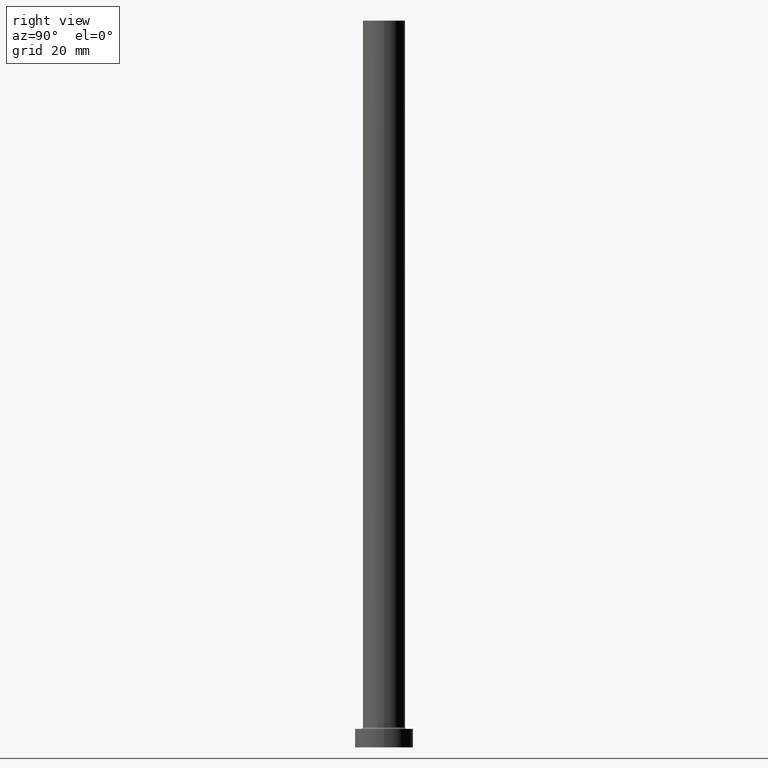
[diagram: clean part render]
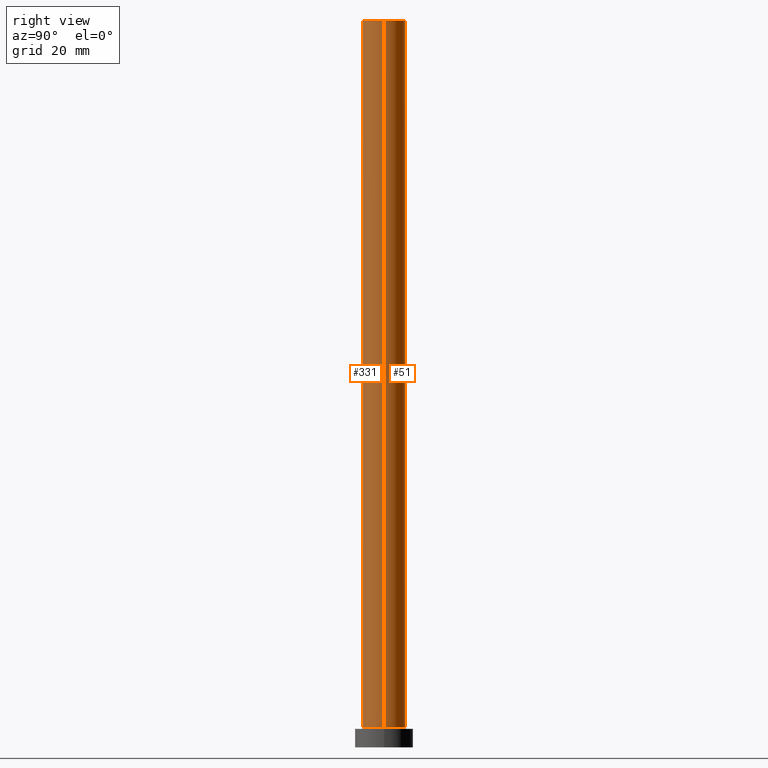
[diagram: same view with one multi-face feature highlighted, each face labeled with its STEP entity id]
A machine part, right view. The highlighted faces form ONE feature: a constant-radius fillet chain: 2 tangent blend faces with common blend radius 8 mm. The faces share edges in the B-rep.
Their STEP definitions:
[1] entity #51 (Cylinder):
#9 = CYLINDRICAL_SURFACE ( 'NONE', #86, 8.000000000000000000 ) ;
#10 = CARTESIAN_POINT ( 'NONE',  ( -8.000000000000000000, 0.000000000000000000, 275.0000000000000000 ) ) ;
#12 = VERTEX_POINT ( 'NONE', #76 ) ;
#43 = CARTESIAN_POINT ( 'NONE',  ( 0.000000000000000000, 0.000000000000000000, 275.0000000000000000 ) ) ;
#44 = CARTESIAN_POINT ( 'NONE',  ( 0.000000000000000000, 0.000000000000000000, 7.699999999999985079 ) ) ;
#50 = LINE ( 'NONE', #10, #146 ) ;
#51 = ADVANCED_FACE ( 'NONE', ( #115 ), #9, .T. ) ;
#76 = CARTESIAN_POINT ( 'NONE',  ( -8.000000000000000000, 0.000000000000000000, 7.699999999999985079 ) ) ;
#86 = AXIS2_PLACEMENT_3D ( 'NONE', #43, #107, #391 ) ;
#91 = CIRCLE ( 'NONE', #269, 8.000000000000000000 ) ;
#92 = DIRECTION ( 'NONE',  ( 1.000000000000000000, 0.000000000000000000, 0.000000000000000000 ) ) ;
#107 = DIRECTION ( 'NONE',  ( -0.000000000000000000, -0.000000000000000000, -1.000000000000000000 ) ) ;
#115 = FACE_OUTER_BOUND ( 'NONE', #410, .T. ) ;
#117 = EDGE_CURVE ( 'NONE', #443, #12, #434, .T. ) ;
#128 = CARTESIAN_POINT ( 'NONE',  ( -8.000000000000000000, 0.000000000000000000, 275.0000000000000000 ) ) ;
#134 = ORIENTED_EDGE ( 'NONE', *, *, #249, .F. ) ;
#146 = VECTOR ( 'NONE', #260, 1000.000000000000000 ) ;
#180 = DIRECTION ( 'NONE',  ( 0.000000000000000000, 0.000000000000000000, 1.000000000000000000 ) ) ;
#186 = CARTESIAN_POINT ( 'NONE',  ( 0.000000000000000000, 0.000000000000000000, 275.0000000000000000 ) ) ;
#199 = DIRECTION ( 'NONE',  ( -0.000000000000000000, -0.000000000000000000, -1.000000000000000000 ) ) ;
#224 = CARTESIAN_POINT ( 'NONE',  ( 8.000000000000000000, 9.797174393178825657E-16, 275.0000000000000000 ) ) ;
#236 = ORIENTED_EDGE ( 'NONE', *, *, #237, .F. ) ;
#237 = EDGE_CURVE ( 'NONE', #421, #12, #50, .T. ) ;
#249 = EDGE_CURVE ( 'NONE', #307, #421, #91, .T. ) ;
#253 = AXIS2_PLACEMENT_3D ( 'NONE', #44, #180, #324 ) ;
#260 = DIRECTION ( 'NONE',  ( -0.000000000000000000, -0.000000000000000000, -1.000000000000000000 ) ) ;
#269 = AXIS2_PLACEMENT_3D ( 'NONE', #186, #328, #92 ) ;
#307 = VERTEX_POINT ( 'NONE', #224 ) ;
#324 = DIRECTION ( 'NONE',  ( 1.000000000000000000, 0.000000000000000000, 0.000000000000000000 ) ) ;
#325 = VECTOR ( 'NONE', #199, 1000.000000000000000 ) ;
#328 = DIRECTION ( 'NONE',  ( 0.000000000000000000, 0.000000000000000000, 1.000000000000000000 ) ) ;
#362 = EDGE_CURVE ( 'NONE', #307, #443, #374, .T. ) ;
#374 = LINE ( 'NONE', #379, #325 ) ;
#379 = CARTESIAN_POINT ( 'NONE',  ( 8.000000000000000000, 9.797174393178825657E-16, 275.0000000000000000 ) ) ;
#381 = CARTESIAN_POINT ( 'NONE',  ( 8.000000000000000000, 9.797174393178825657E-16, 7.699999999999985079 ) ) ;
#391 = DIRECTION ( 'NONE',  ( -1.000000000000000000, 0.000000000000000000, 0.000000000000000000 ) ) ;
#410 = EDGE_LOOP ( 'NONE', ( #134, #454, #452, #236 ) ) ;
#421 = VERTEX_POINT ( 'NONE', #128 ) ;
#434 = CIRCLE ( 'NONE', #253, 8.000000000000000000 ) ;
#443 = VERTEX_POINT ( 'NONE', #381 ) ;
#452 = ORIENTED_EDGE ( 'NONE', *, *, #117, .T. ) ;
#454 = ORIENTED_EDGE ( 'NONE', *, *, #362, .T. ) ;
[2] entity #331 (Cylinder):
#10 = CARTESIAN_POINT ( 'NONE',  ( -8.000000000000000000, 0.000000000000000000, 275.0000000000000000 ) ) ;
#12 = VERTEX_POINT ( 'NONE', #76 ) ;
#18 = DIRECTION ( 'NONE',  ( 0.000000000000000000, 0.000000000000000000, 1.000000000000000000 ) ) ;
#22 = EDGE_CURVE ( 'NONE', #421, #307, #273, .T. ) ;
#50 = LINE ( 'NONE', #10, #146 ) ;
#76 = CARTESIAN_POINT ( 'NONE',  ( -8.000000000000000000, 0.000000000000000000, 7.699999999999985079 ) ) ;
#95 = ORIENTED_EDGE ( 'NONE', *, *, #237, .T. ) ;
#120 = CIRCLE ( 'NONE', #308, 8.000000000000000000 ) ;
#124 = CARTESIAN_POINT ( 'NONE',  ( 0.000000000000000000, 0.000000000000000000, 7.699999999999985079 ) ) ;
#126 = DIRECTION ( 'NONE',  ( -0.000000000000000000, -0.000000000000000000, -1.000000000000000000 ) ) ;
#128 = CARTESIAN_POINT ( 'NONE',  ( -8.000000000000000000, 0.000000000000000000, 275.0000000000000000 ) ) ;
#146 = VECTOR ( 'NONE', #260, 1000.000000000000000 ) ;
#164 = ORIENTED_EDGE ( 'NONE', *, *, #321, .T. ) ;
#185 = ORIENTED_EDGE ( 'NONE', *, *, #22, .F. ) ;
#199 = DIRECTION ( 'NONE',  ( -0.000000000000000000, -0.000000000000000000, -1.000000000000000000 ) ) ;
#214 = DIRECTION ( 'NONE',  ( 0.000000000000000000, 0.000000000000000000, 1.000000000000000000 ) ) ;
#224 = CARTESIAN_POINT ( 'NONE',  ( 8.000000000000000000, 9.797174393178825657E-16, 275.0000000000000000 ) ) ;
#237 = EDGE_CURVE ( 'NONE', #421, #12, #50, .T. ) ;
#239 = EDGE_LOOP ( 'NONE', ( #375, #185, #95, #164 ) ) ;
#260 = DIRECTION ( 'NONE',  ( -0.000000000000000000, -0.000000000000000000, -1.000000000000000000 ) ) ;
#265 = AXIS2_PLACEMENT_3D ( 'NONE', #424, #214, #460 ) ;
#273 = CIRCLE ( 'NONE', #265, 8.000000000000000000 ) ;
#304 = CYLINDRICAL_SURFACE ( 'NONE', #350, 8.000000000000000000 ) ;
#307 = VERTEX_POINT ( 'NONE', #224 ) ;
#308 = AXIS2_PLACEMENT_3D ( 'NONE', #124, #18, #405 ) ;
#321 = EDGE_CURVE ( 'NONE', #12, #443, #120, .T. ) ;
#325 = VECTOR ( 'NONE', #199, 1000.000000000000000 ) ;
#331 = ADVANCED_FACE ( 'NONE', ( #343 ), #304, .T. ) ;
#343 = FACE_OUTER_BOUND ( 'NONE', #239, .T. ) ;
#350 = AXIS2_PLACEMENT_3D ( 'NONE', #409, #126, #351 ) ;
#351 = DIRECTION ( 'NONE',  ( -1.000000000000000000, 0.000000000000000000, 0.000000000000000000 ) ) ;
#362 = EDGE_CURVE ( 'NONE', #307, #443, #374, .T. ) ;
#374 = LINE ( 'NONE', #379, #325 ) ;
#375 = ORIENTED_EDGE ( 'NONE', *, *, #362, .F. ) ;
#379 = CARTESIAN_POINT ( 'NONE',  ( 8.000000000000000000, 9.797174393178825657E-16, 275.0000000000000000 ) ) ;
#381 = CARTESIAN_POINT ( 'NONE',  ( 8.000000000000000000, 9.797174393178825657E-16, 7.699999999999985079 ) ) ;
#405 = DIRECTION ( 'NONE',  ( 1.000000000000000000, 0.000000000000000000, 0.000000000000000000 ) ) ;
#409 = CARTESIAN_POINT ( 'NONE',  ( 0.000000000000000000, 0.000000000000000000, 275.0000000000000000 ) ) ;
#421 = VERTEX_POINT ( 'NONE', #128 ) ;
#424 = CARTESIAN_POINT ( 'NONE',  ( 0.000000000000000000, 0.000000000000000000, 275.0000000000000000 ) ) ;
#443 = VERTEX_POINT ( 'NONE', #381 ) ;
#460 = DIRECTION ( 'NONE',  ( 1.000000000000000000, 0.000000000000000000, 0.000000000000000000 ) ) ;